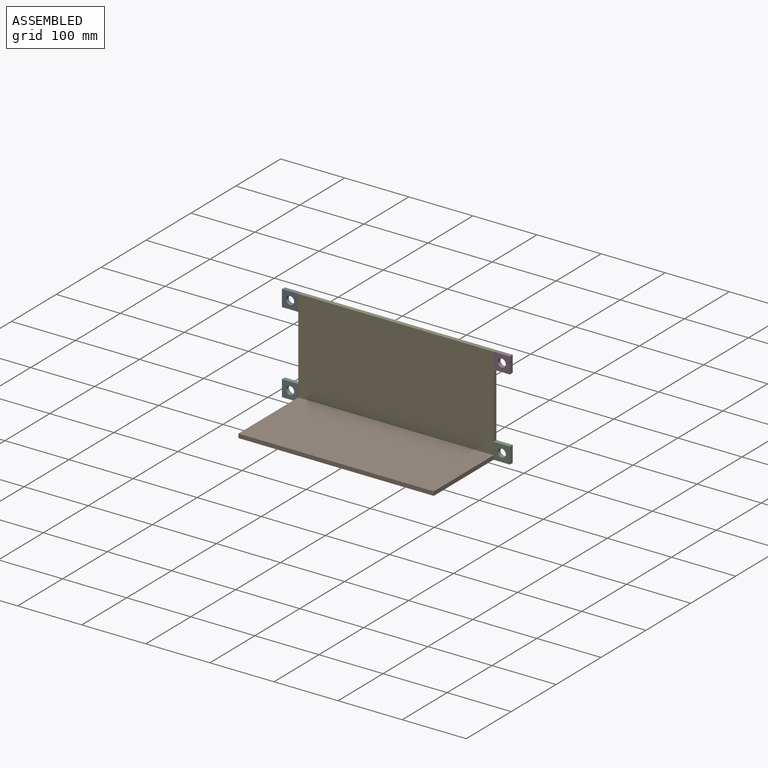
[diagram: assembled view]
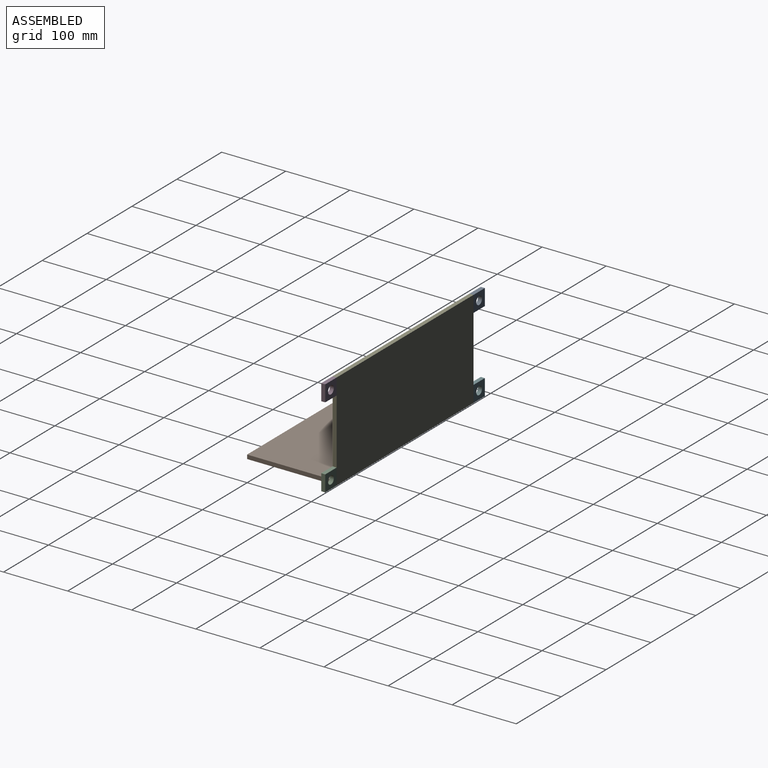
[diagram: assembled view, second angle]
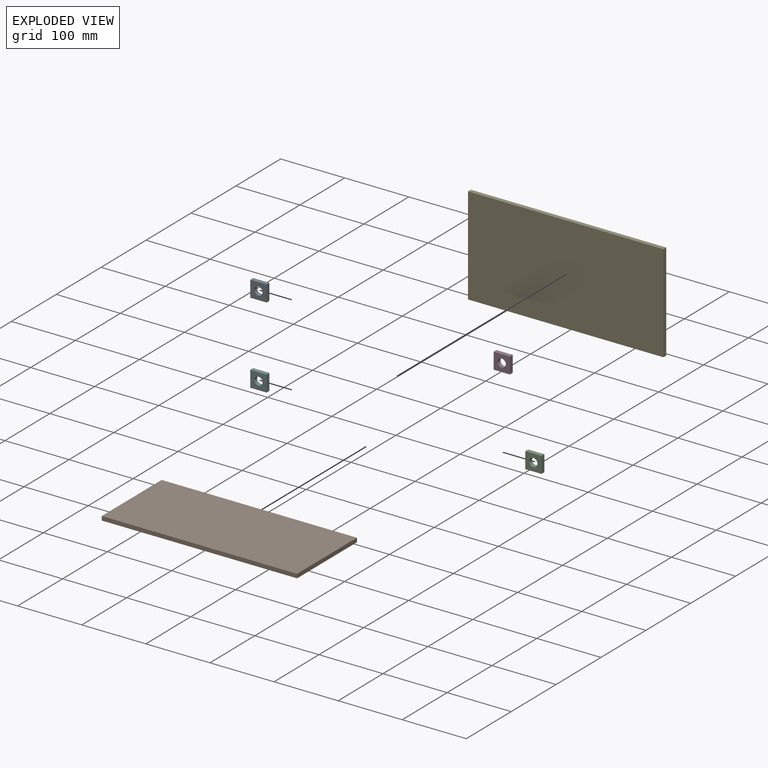
[diagram: exploded view]
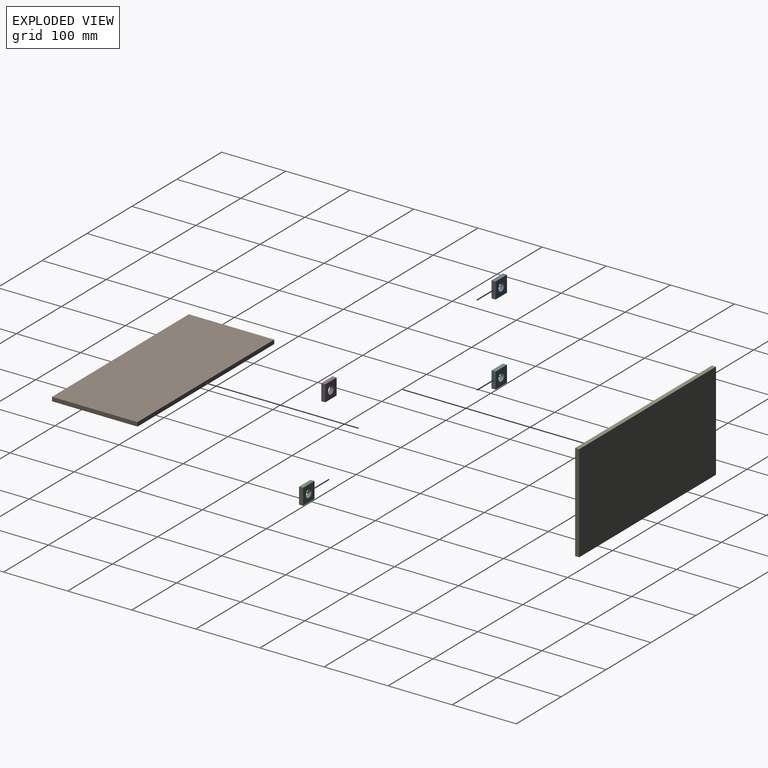
[diagram: exploded view, second angle]
ASSEMBLY  parts=6 mates=5
PART A: 7 faces, bbox 25.4x6.4x25.4 mm
  f0: plane 25.4x6.35mm, normal (1,0,0), area 161.3mm2, adj f1,f3,f4,f5
  f1: plane 25.4x6.35mm, normal (0,0,1), area 161.3mm2, adj f0,f2,f4,f5
  f2: plane 25.4x6.35mm, normal (-1,0,0), area 161.3mm2, adj f1,f3,f4,f5
  f3: plane 25.4x6.35mm, normal (0,0,-1), area 161.3mm2, adj f0,f2,f4,f5
  f4: plane 25.4x25.4mm, normal (0,-1,0), area 518.5mm2, adj f0,f1,f2,f3,f6
  f5: plane 25.4x25.4mm, normal (0,1,0), area 518.5mm2, adj f0,f1,f2,f3,f6
  f6: cylinder r=6.35mm len=12.7mm, axis (0,-1,0), area 253.4mm2, adj f4,f5
PART B: 6 faces, bbox 304.8x6.4x133.4 mm
  f0: plane 304.8x6.35mm, normal (0,0,-1), area 1935.5mm2, adj f1,f3,f4,f5
  f1: plane 133.35x6.35mm, normal (1,0,0), area 846.8mm2, adj f0,f2,f4,f5
  f2: plane 304.8x6.35mm, normal (0,0,1), area 1935.5mm2, adj f1,f3,f4,f5
  f3: plane 133.35x6.35mm, normal (-1,0,0), area 846.8mm2, adj f0,f2,f4,f5
  f4: plane 304.8x133.35mm, normal (0,-1,0), area 40645.1mm2, adj f0,f1,f2,f3
  f5: plane 304.8x133.35mm, normal (0,1,0), area 40645.1mm2, adj f0,f1,f2,f3
PART C: same geometry as A
PART D: same geometry as A
PART E: 6 faces, bbox 304.8x6.4x152.4 mm
  f0: plane 152.4x6.35mm, normal (1,0,0), area 967.7mm2, adj f1,f3,f4,f5
  f1: plane 304.8x6.35mm, normal (0,0,1), area 1935.5mm2, adj f0,f2,f4,f5
  f2: plane 152.4x6.35mm, normal (-1,0,0), area 967.7mm2, adj f1,f3,f4,f5
  f3: plane 304.8x6.35mm, normal (0,0,-1), area 1935.5mm2, adj f0,f2,f4,f5
  f4: plane 304.8x152.4mm, normal (0,-1,0), area 46451.5mm2, adj f0,f1,f2,f3
  f5: plane 304.8x152.4mm, normal (0,1,0), area 46451.5mm2, adj f0,f1,f2,f3
PART F: same geometry as A
PLACE A t=(-208.32,6.35,17.51)mm
PLACE B rot(axis=(1,0,0),90deg) t=(0,-20.9,-69.85)mm
PLACE C t=(121.88,6.35,-109.49)mm
PLACE D t=(121.88,6.35,17.51)mm
PLACE E rot(axis=(0,0,1),180deg) t=(-50.93,0,-20.51)mm
PLACE F t=(-208.32,6.35,-109.49)mm
MATE fastened F.f0 <-> E.f0  axis (1,0,0) through (-152.4,6.35,-76.2)mm
MATE fastened D.f2 <-> E.f2  axis (-1,0,0) through (152.4,6.35,76.2)mm
MATE fastened E.f0 <-> A.f0  axis (-1,0,0) through (-152.4,6.35,76.2)mm
MATE fastened B.f0 <-> E.f5  axis (0,1,0) through (-152.4,0,-76.2)mm
MATE fastened C.f2 <-> E.f2  axis (-1,0,0) through (152.4,6.35,-76.2)mm
